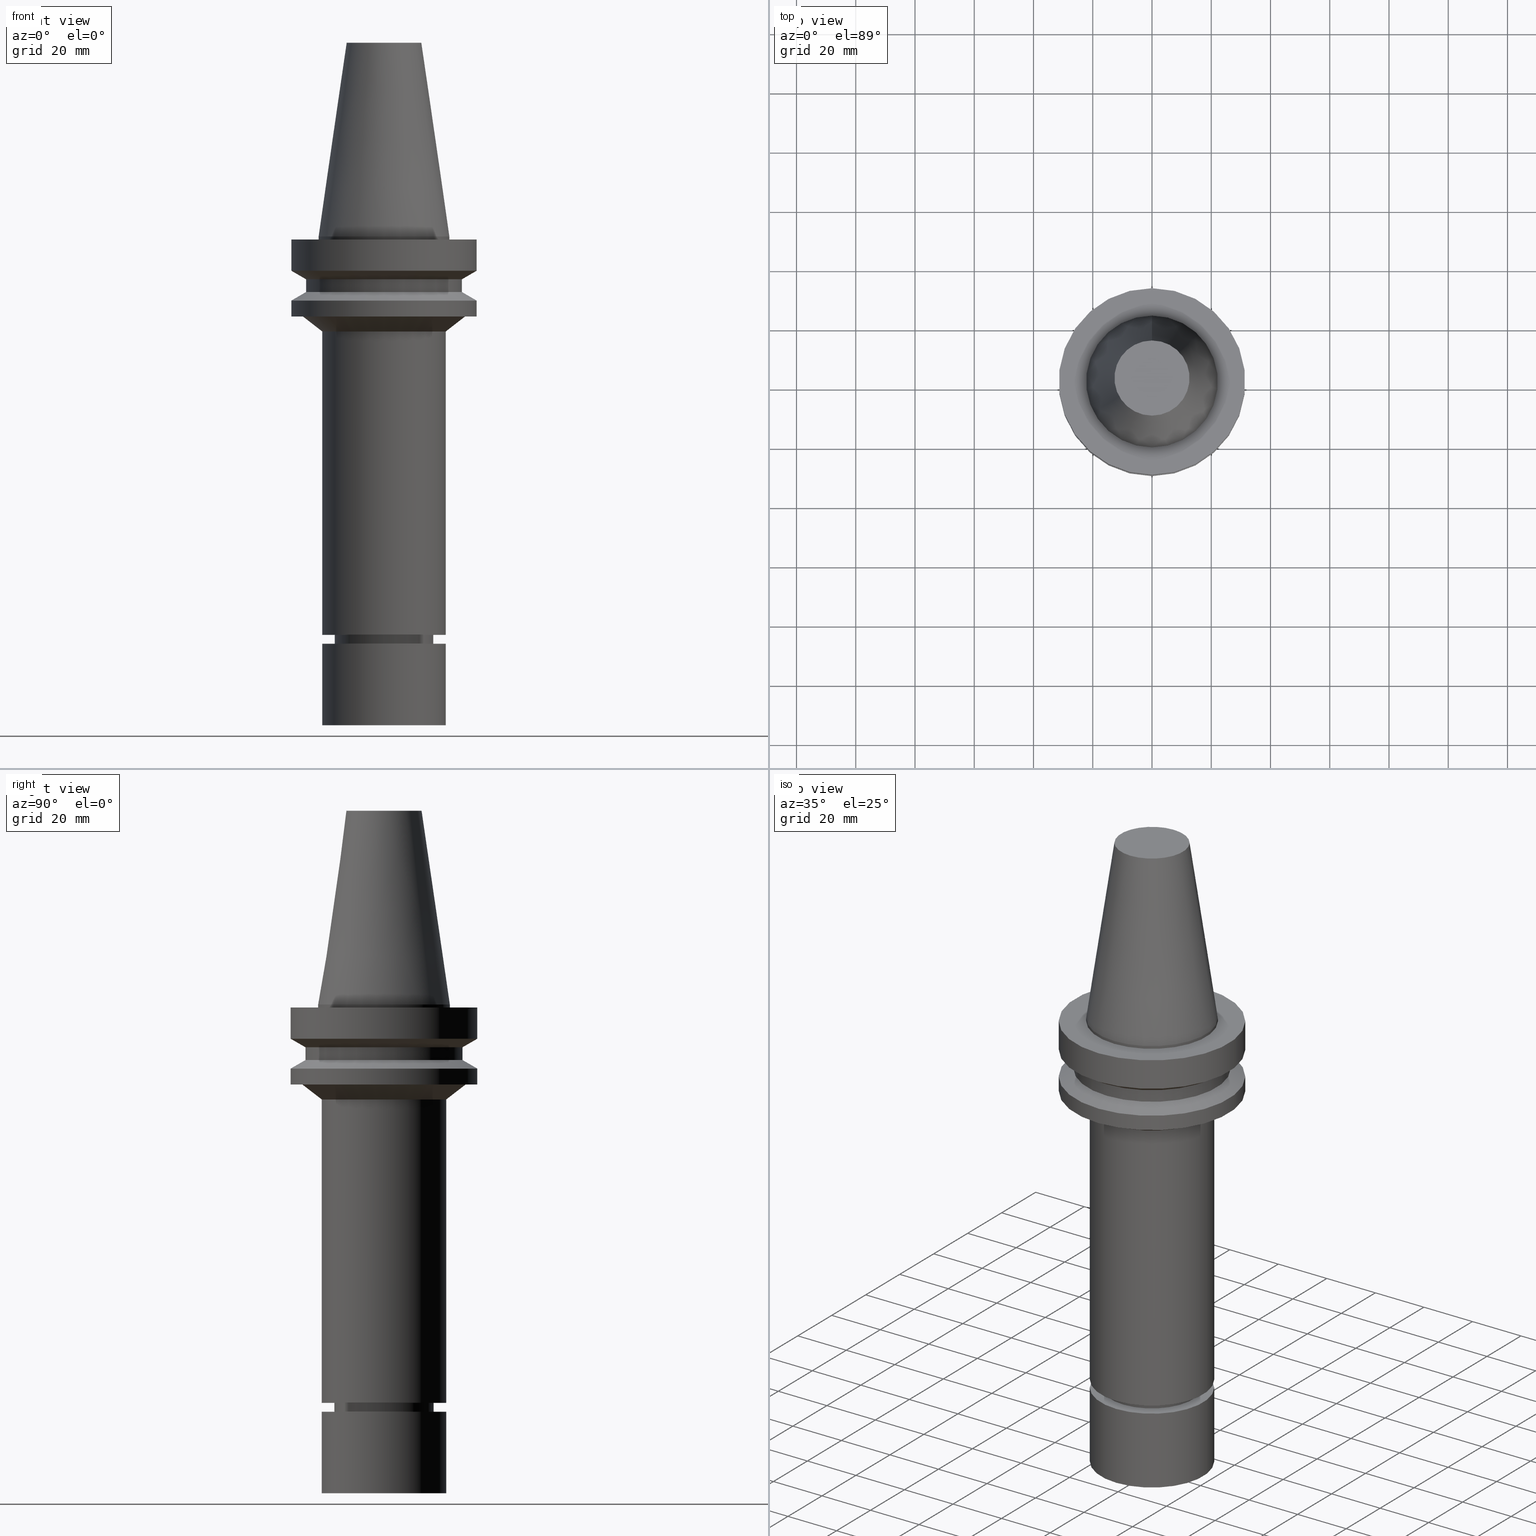
[diagram: canonical four-view strip — front | top / right | iso, engineering-drawing reading convention]
A machine part, canonical four-view strip (front | top / right | iso — engineering-drawing reading convention). The complete STEP part file that produces these views, byte-faithful:
ISO-10303-21;
HEADER;
FILE_DESCRIPTION((''),'1');
FILE_NAME('V:/90_\X2\53D65F9730C730FC30BF\X0\/00_\X2\6DE18DEF30C730FC30BF\X0\/ALL/BBT-BKUS\X2\FF76FF80FF9BFF78FF9E752852A05DE556F3\X0\201801/BBT40-MEGAER/BBT40-MEGAER25-165NL.stp','2018-02-07T02:24:15',(''),(''),'Spatial Interop R21 SP3','Kubotek KeyCreator 2011 V10.0.2 (22737)',' ');
FILE_SCHEMA(('automotive_design'));
ENDSEC;
DATA;
#1=MECHANICAL_DESIGN_GEOMETRIC_PRESENTATION_REPRESENTATION(' ',(#14,#15,#16,#17,#18,#19,#20,#21,#22,#23,#24,#25,#26,#27,#28,#29,#30,#31,#32,#33,#34,#35,#36,#37,#38,#39,#40,#41,#42,#43,#44,#45,#46,#47,#48,#49,#50,#51,#52,#53,#54,#55),#10);
#2=PRODUCT_DEFINITION_CONTEXT('',#56,'design');
#3=APPLICATION_PROTOCOL_DEFINITION('INTERNATIONAL STANDARD','automotive_design',1994,#56);
#4=PRODUCT_CATEGORY_RELATIONSHIP('NONE','NONE',#57,#58);
#5=SHAPE_DEFINITION_REPRESENTATION(#59,#60);
#6=PRODUCT_DEFINITION_CONTEXT('',#61,'design');
#7=APPLICATION_PROTOCOL_DEFINITION('INTERNATIONAL STANDARD','automotive_design',1994,#61);
#8=PRODUCT_CATEGORY_RELATIONSHIP('NONE','NONE',#62,#63);
#9=SHAPE_DEFINITION_REPRESENTATION(#64,#65);
#10= (GEOMETRIC_REPRESENTATION_CONTEXT(3)GLOBAL_UNCERTAINTY_ASSIGNED_CONTEXT((#68))GLOBAL_UNIT_ASSIGNED_CONTEXT((#70,#71,#72))REPRESENTATION_CONTEXT('NONE','WORKSPACE'));
#14=STYLED_ITEM('',(#74,#75),#76);
#15=STYLED_ITEM('',(#77,#78),#79);
#16=STYLED_ITEM('',(#80),#81);
#17=STYLED_ITEM('',(#82),#83);
#18=STYLED_ITEM('',(#84,#85),#86);
#19=STYLED_ITEM('',(#87),#88);
#20=STYLED_ITEM('',(#89,#90),#91);
#21=STYLED_ITEM('',(#92),#93);
#22=STYLED_ITEM('',(#94),#95);
#23=STYLED_ITEM('',(#96,#97),#98);
#24=STYLED_ITEM('',(#99),#100);
#25=STYLED_ITEM('',(#101),#102);
#26=STYLED_ITEM('',(#103,#104),#105);
#27=STYLED_ITEM('',(#106),#107);
#28=STYLED_ITEM('',(#108),#109);
#29=STYLED_ITEM('',(#110),#111);
#30=STYLED_ITEM('',(#112,#113),#114);
#31=STYLED_ITEM('',(#115),#116);
#32=STYLED_ITEM('',(#117,#118),#119);
#33=STYLED_ITEM('',(#120),#121);
#34=STYLED_ITEM('',(#122,#123),#124);
#35=STYLED_ITEM('',(#125,#126),#127);
#36=STYLED_ITEM('',(#128),#129);
#37=STYLED_ITEM('',(#130,#131),#132);
#38=STYLED_ITEM('',(#133),#134);
#39=STYLED_ITEM('',(#135,#136),#137);
#40=STYLED_ITEM('',(#138),#139);
#41=STYLED_ITEM('',(#140),#141);
#42=STYLED_ITEM('',(#142,#143),#144);
#43=STYLED_ITEM('',(#145,#146),#147);
#44=STYLED_ITEM('',(#148,#149),#150);
#45=STYLED_ITEM('',(#151,#152),#153);
#46=STYLED_ITEM('',(#154),#155);
#47=STYLED_ITEM('',(#156,#157),#158);
#48=STYLED_ITEM('',(#159,#160),#161);
#49=STYLED_ITEM('',(#162),#163);
#50=STYLED_ITEM('',(#164,#165),#166);
#51=STYLED_ITEM('',(#167,#168),#169);
#52=STYLED_ITEM('',(#170,#171),#172);
#53=STYLED_ITEM('',(#173),#174);
#54=STYLED_ITEM('',(#175,#176),#177);
#55=STYLED_ITEM('',(#178,#179),#180);
#56=APPLICATION_CONTEXT(' ');
#57=PRODUCT_CATEGORY('part','NONE');
#58=PRODUCT_RELATED_PRODUCT_CATEGORY('detail',' ',(#181));
#59=PRODUCT_DEFINITION_SHAPE('NONE','NONE',#182);
#60=ADVANCED_BREP_SHAPE_REPRESENTATION('Unnamed[1]',(#180,#183),#10);
#61=APPLICATION_CONTEXT(' ');
#62=PRODUCT_CATEGORY('part','NONE');
#63=PRODUCT_RELATED_PRODUCT_CATEGORY('detail',' ',(#184));
#64=PRODUCT_DEFINITION_SHAPE('NONE','NONE',#185);
#65=ADVANCED_BREP_SHAPE_REPRESENTATION('Unnamed[1]',(#98,#186),#10);
#68=UNCERTAINTY_MEASURE_WITH_UNIT(LENGTH_MEASURE(1.0E-006),#70,'','');
#70= (CONVERSION_BASED_UNIT('MILLIMETRE',#189)LENGTH_UNIT()NAMED_UNIT(#192));
#71= (NAMED_UNIT(#194)PLANE_ANGLE_UNIT()SI_UNIT($,.RADIAN.));
#72= (NAMED_UNIT(#194)SOLID_ANGLE_UNIT()SI_UNIT($,.STERADIAN.));
#74=PRESENTATION_STYLE_ASSIGNMENT((#200));
#75=PRESENTATION_STYLE_ASSIGNMENT((#201));
#76=ADVANCED_FACE('Unnamed[1]',(#202,#203),#204,.T.);
#77=PRESENTATION_STYLE_ASSIGNMENT((#205));
#78=PRESENTATION_STYLE_ASSIGNMENT((#206));
#79=ADVANCED_FACE('Unnamed[1]',(#207,#208),#209,.T.);
#80=PRESENTATION_STYLE_ASSIGNMENT((#210));
#81=EDGE_CURVE('Unnamed[1]',#211,#211,#212,.T.);
#82=PRESENTATION_STYLE_ASSIGNMENT((#213));
#83=EDGE_CURVE('Unnamed[1]',#214,#214,#215,.T.);
#84=PRESENTATION_STYLE_ASSIGNMENT((#216));
#85=PRESENTATION_STYLE_ASSIGNMENT((#217));
#86=ADVANCED_FACE('Unnamed[1]',(#218,#219),#220,.T.);
#87=PRESENTATION_STYLE_ASSIGNMENT((#221));
#88=EDGE_CURVE('Unnamed[1]',#222,#222,#223,.T.);
#89=PRESENTATION_STYLE_ASSIGNMENT((#224));
#90=PRESENTATION_STYLE_ASSIGNMENT((#225));
#91=ADVANCED_FACE('Unnamed[1]',(#226,#227),#228,.T.);
#92=PRESENTATION_STYLE_ASSIGNMENT((#229));
#93=EDGE_CURVE('Unnamed[1]',#230,#230,#231,.T.);
#94=PRESENTATION_STYLE_ASSIGNMENT((#232));
#95=EDGE_CURVE('Unnamed[1]',#233,#233,#234,.T.);
#96=PRESENTATION_STYLE_ASSIGNMENT((#235));
#97=PRESENTATION_STYLE_ASSIGNMENT((#236));
#98=MANIFOLD_SOLID_BREP('Unnamed[1]',#237);
#99=PRESENTATION_STYLE_ASSIGNMENT((#238));
#100=EDGE_CURVE('Unnamed[1]',#239,#239,#240,.T.);
#101=PRESENTATION_STYLE_ASSIGNMENT((#241));
#102=EDGE_CURVE('Unnamed[1]',#242,#242,#243,.T.);
#103=PRESENTATION_STYLE_ASSIGNMENT((#244));
#104=PRESENTATION_STYLE_ASSIGNMENT((#245));
#105=ADVANCED_FACE('Unnamed[1]',(#246,#247),#248,.T.);
#106=PRESENTATION_STYLE_ASSIGNMENT((#249));
#107=EDGE_CURVE('Unnamed[1]',#250,#250,#251,.T.);
#108=PRESENTATION_STYLE_ASSIGNMENT((#252));
#109=EDGE_CURVE('Unnamed[1]',#253,#253,#254,.T.);
#110=PRESENTATION_STYLE_ASSIGNMENT((#255));
#111=EDGE_CURVE('Unnamed[1]',#256,#256,#257,.T.);
#112=PRESENTATION_STYLE_ASSIGNMENT((#258));
#113=PRESENTATION_STYLE_ASSIGNMENT((#259));
#114=ADVANCED_FACE('Unnamed[1]',(#260,#261),#262,.T.);
#115=PRESENTATION_STYLE_ASSIGNMENT((#263));
#116=EDGE_CURVE('Unnamed[1]',#264,#264,#265,.T.);
#117=PRESENTATION_STYLE_ASSIGNMENT((#266));
#118=PRESENTATION_STYLE_ASSIGNMENT((#267));
#119=ADVANCED_FACE('Unnamed[1]',(#268),#269,.T.);
#120=PRESENTATION_STYLE_ASSIGNMENT((#270));
#121=EDGE_CURVE('Unnamed[1]',#271,#271,#272,.T.);
#122=PRESENTATION_STYLE_ASSIGNMENT((#273));
#123=PRESENTATION_STYLE_ASSIGNMENT((#274));
#124=ADVANCED_FACE('Unnamed[1]',(#275,#276),#277,.T.);
#125=PRESENTATION_STYLE_ASSIGNMENT((#278));
#126=PRESENTATION_STYLE_ASSIGNMENT((#279));
#127=ADVANCED_FACE('Unnamed[1]',(#280,#281),#282,.T.);
#128=PRESENTATION_STYLE_ASSIGNMENT((#283));
#129=EDGE_CURVE('Unnamed[1]',#284,#284,#285,.T.);
#130=PRESENTATION_STYLE_ASSIGNMENT((#286));
#131=PRESENTATION_STYLE_ASSIGNMENT((#287));
#132=ADVANCED_FACE('Unnamed[1]',(#288),#289,.T.);
#133=PRESENTATION_STYLE_ASSIGNMENT((#290));
#134=EDGE_CURVE('Unnamed[1]',#291,#291,#292,.T.);
#135=PRESENTATION_STYLE_ASSIGNMENT((#293));
#136=PRESENTATION_STYLE_ASSIGNMENT((#294));
#137=ADVANCED_FACE('Unnamed[1]',(#295,#296),#297,.T.);
#138=PRESENTATION_STYLE_ASSIGNMENT((#298));
#139=EDGE_CURVE('Unnamed[1]',#299,#299,#300,.T.);
#140=PRESENTATION_STYLE_ASSIGNMENT((#301));
#141=EDGE_CURVE('Unnamed[1]',#302,#302,#303,.T.);
#142=PRESENTATION_STYLE_ASSIGNMENT((#304));
#143=PRESENTATION_STYLE_ASSIGNMENT((#305));
#144=ADVANCED_FACE('Unnamed[1]',(#306,#307),#308,.T.);
#145=PRESENTATION_STYLE_ASSIGNMENT((#309));
#146=PRESENTATION_STYLE_ASSIGNMENT((#310));
#147=ADVANCED_FACE('Unnamed[1]',(#311,#312),#313,.T.);
#148=PRESENTATION_STYLE_ASSIGNMENT((#314));
#149=PRESENTATION_STYLE_ASSIGNMENT((#315));
#150=ADVANCED_FACE('Unnamed[1]',(#316,#317),#318,.T.);
#151=PRESENTATION_STYLE_ASSIGNMENT((#319));
#152=PRESENTATION_STYLE_ASSIGNMENT((#320));
#153=ADVANCED_FACE('Unnamed[1]',(#321),#322,.T.);
#154=PRESENTATION_STYLE_ASSIGNMENT((#323));
#155=EDGE_CURVE('Unnamed[1]',#324,#324,#325,.T.);
#156=PRESENTATION_STYLE_ASSIGNMENT((#326));
#157=PRESENTATION_STYLE_ASSIGNMENT((#327));
#158=ADVANCED_FACE('Unnamed[1]',(#328,#329),#330,.T.);
#159=PRESENTATION_STYLE_ASSIGNMENT((#331));
#160=PRESENTATION_STYLE_ASSIGNMENT((#332));
#161=ADVANCED_FACE('Unnamed[1]',(#333),#334,.T.);
#162=PRESENTATION_STYLE_ASSIGNMENT((#335));
#163=EDGE_CURVE('Unnamed[1]',#336,#336,#337,.T.);
#164=PRESENTATION_STYLE_ASSIGNMENT((#338));
#165=PRESENTATION_STYLE_ASSIGNMENT((#339));
#166=ADVANCED_FACE('Unnamed[1]',(#340,#341),#342,.T.);
#167=PRESENTATION_STYLE_ASSIGNMENT((#343));
#168=PRESENTATION_STYLE_ASSIGNMENT((#344));
#169=ADVANCED_FACE('Unnamed[1]',(#345,#346),#347,.T.);
#170=PRESENTATION_STYLE_ASSIGNMENT((#348));
#171=PRESENTATION_STYLE_ASSIGNMENT((#349));
#172=ADVANCED_FACE('Unnamed[1]',(#350,#351),#352,.T.);
#173=PRESENTATION_STYLE_ASSIGNMENT((#353));
#174=EDGE_CURVE('Unnamed[1]',#354,#354,#355,.T.);
#175=PRESENTATION_STYLE_ASSIGNMENT((#356));
#176=PRESENTATION_STYLE_ASSIGNMENT((#357));
#177=ADVANCED_FACE('Unnamed[1]',(#358,#359),#360,.T.);
#178=PRESENTATION_STYLE_ASSIGNMENT((#361));
#179=PRESENTATION_STYLE_ASSIGNMENT((#362));
#180=MANIFOLD_SOLID_BREP('Unnamed[1]',#363);
#181=PRODUCT('Unnamed[1]','Unnamed[1]','PART-Unnamed[1]-DESC',(#364));
#182=PRODUCT_DEFINITION('NONE','NONE',#365,#2);
#183=AXIS2_PLACEMENT_3D('',#366,#367,#368);
#184=PRODUCT('Unnamed[1]','Unnamed[1]','PART-Unnamed[1]-DESC',(#369));
#185=PRODUCT_DEFINITION('NONE','NONE',#370,#6);
#186=AXIS2_PLACEMENT_3D('',#371,#372,#373);
#189=LENGTH_MEASURE_WITH_UNIT(LENGTH_MEASURE(1.0),#374);
#192=DIMENSIONAL_EXPONENTS(1.0,0.0,0.0,0.0,0.0,0.0,0.0);
#194=DIMENSIONAL_EXPONENTS(0.0,0.0,0.0,0.0,0.0,0.0,0.0);
#200=SURFACE_STYLE_USAGE(.BOTH.,#375);
#201=CURVE_STYLE('',#376,POSITIVE_LENGTH_MEASURE(1000.0),#377);
#202=FACE_BOUND('',#378,.T.);
#203=FACE_OUTER_BOUND('',#379,.T.);
#204=PLANE('',#380);
#205=SURFACE_STYLE_USAGE(.BOTH.,#381);
#206=CURVE_STYLE('',#382,POSITIVE_LENGTH_MEASURE(1000.0),#383);
#207=FACE_BOUND('',#384,.T.);
#208=FACE_BOUND('',#385,.T.);
#209=CONICAL_SURFACE('',#386,28.9999999999998,1.04719755119657);
#210=CURVE_STYLE('',#387,POSITIVE_LENGTH_MEASURE(1000.0),#388);
#211=VERTEX_POINT('',#389);
#212=CIRCLE('',#390,21.0000000000001);
#213=CURVE_STYLE('',#391,POSITIVE_LENGTH_MEASURE(1000.0),#392);
#214=VERTEX_POINT('',#393);
#215=CIRCLE('',#394,14.9000000000005);
#216=SURFACE_STYLE_USAGE(.BOTH.,#395);
#217=CURVE_STYLE('',#396,POSITIVE_LENGTH_MEASURE(1000.0),#397);
#218=FACE_BOUND('',#398,.T.);
#219=FACE_BOUND('',#399,.T.);
#220=CYLINDRICAL_SURFACE('',#400,22.225);
#221=CURVE_STYLE('',#401,POSITIVE_LENGTH_MEASURE(1000.0),#402);
#222=VERTEX_POINT('',#403);
#223=CIRCLE('',#404,22.225);
#224=SURFACE_STYLE_USAGE(.BOTH.,#405);
#225=CURVE_STYLE('',#406,POSITIVE_LENGTH_MEASURE(1000.0),#407);
#226=FACE_BOUND('',#408,.T.);
#227=FACE_BOUND('',#409,.T.);
#228=CONICAL_SURFACE('',#410,16.3750000000007,1.04719755120057);
#229=CURVE_STYLE('',#411,POSITIVE_LENGTH_MEASURE(1000.0),#412);
#230=VERTEX_POINT('',#413);
#231=CIRCLE('',#414,26.4999999999994);
#232=CURVE_STYLE('',#415,POSITIVE_LENGTH_MEASURE(1000.0),#416);
#233=VERTEX_POINT('',#417);
#234=CIRCLE('',#418,20.9999999999999);
#235=SURFACE_STYLE_USAGE(.BOTH.,#419);
#236=CURVE_STYLE('',#420,POSITIVE_LENGTH_MEASURE(1000.0),#421);
#237=CLOSED_SHELL('',(#161,#119,#158));
#238=CURVE_STYLE('',#422,POSITIVE_LENGTH_MEASURE(1000.0),#423);
#239=VERTEX_POINT('',#424);
#240=CIRCLE('',#425,31.5000000000003);
#241=CURVE_STYLE('',#426,POSITIVE_LENGTH_MEASURE(1000.0),#427);
#242=VERTEX_POINT('',#428);
#243=CIRCLE('',#429,21.0000000000004);
#244=SURFACE_STYLE_USAGE(.BOTH.,#430);
#245=CURVE_STYLE('',#431,POSITIVE_LENGTH_MEASURE(1000.0),#432);
#246=FACE_BOUND('',#433,.T.);
#247=FACE_BOUND('',#434,.T.);
#248=CONICAL_SURFACE('',#435,17.45625,0.144812498238936);
#249=CURVE_STYLE('',#436,POSITIVE_LENGTH_MEASURE(1000.0),#437);
#250=VERTEX_POINT('',#438);
#251=CIRCLE('',#439,20.9999999999999);
#252=CURVE_STYLE('',#440,POSITIVE_LENGTH_MEASURE(1000.0),#441);
#253=VERTEX_POINT('',#442);
#254=CIRCLE('',#443,12.6875000000001);
#255=CURVE_STYLE('',#444,POSITIVE_LENGTH_MEASURE(1000.0),#445);
#256=VERTEX_POINT('',#446);
#257=CIRCLE('',#447,26.5);
#258=SURFACE_STYLE_USAGE(.BOTH.,#448);
#259=CURVE_STYLE('',#449,POSITIVE_LENGTH_MEASURE(1000.0),#450);
#260=FACE_BOUND('',#451,.T.);
#261=FACE_BOUND('',#452,.T.);
#262=CONICAL_SURFACE('',#453,24.285926013083,0.914225393497888);
#263=CURVE_STYLE('',#454,POSITIVE_LENGTH_MEASURE(1000.0),#455);
#264=VERTEX_POINT('',#456);
#265=CIRCLE('',#457,22.225);
#266=SURFACE_STYLE_USAGE(.BOTH.,#458);
#267=CURVE_STYLE('',#459,POSITIVE_LENGTH_MEASURE(1000.0),#460);
#268=FACE_OUTER_BOUND('',#461,.T.);
#269=PLANE('',#462);
#270=CURVE_STYLE('',#463,POSITIVE_LENGTH_MEASURE(1000.0),#464);
#271=VERTEX_POINT('',#465);
#272=CIRCLE('',#466,31.5000000000003);
#273=SURFACE_STYLE_USAGE(.BOTH.,#467);
#274=CURVE_STYLE('',#468,POSITIVE_LENGTH_MEASURE(1000.0),#469);
#275=FACE_BOUND('',#470,.T.);
#276=FACE_BOUND('',#471,.T.);
#277=CYLINDRICAL_SURFACE('',#472,16.7499999999961);
#278=SURFACE_STYLE_USAGE(.BOTH.,#473);
#279=CURVE_STYLE('',#474,POSITIVE_LENGTH_MEASURE(1000.0),#475);
#280=FACE_BOUND('',#476,.T.);
#281=FACE_BOUND('',#477,.T.);
#282=CYLINDRICAL_SURFACE('',#478,15.9999999999999);
#283=CURVE_STYLE('',#479,POSITIVE_LENGTH_MEASURE(1000.0),#480);
#284=VERTEX_POINT('',#481);
#285=CIRCLE('',#482,16.7500000000015);
#286=SURFACE_STYLE_USAGE(.BOTH.,#483);
#287=CURVE_STYLE('',#484,POSITIVE_LENGTH_MEASURE(1000.0),#485);
#288=FACE_OUTER_BOUND('',#486,.T.);
#289=PLANE('',#487);
#290=CURVE_STYLE('',#488,POSITIVE_LENGTH_MEASURE(1000.0),#489);
#291=VERTEX_POINT('',#490);
#292=CIRCLE('',#491,27.5718520261655);
#293=SURFACE_STYLE_USAGE(.BOTH.,#492);
#294=CURVE_STYLE('',#493,POSITIVE_LENGTH_MEASURE(1000.0),#494);
#295=FACE_BOUND('',#495,.T.);
#296=FACE_BOUND('',#496,.T.);
#297=CONICAL_SURFACE('',#497,15.4500000000002,0.523598775598073);
#298=CURVE_STYLE('',#498,POSITIVE_LENGTH_MEASURE(1000.0),#499);
#299=VERTEX_POINT('',#500);
#300=CIRCLE('',#501,15.9999999999999);
#301=CURVE_STYLE('',#502,POSITIVE_LENGTH_MEASURE(1000.0),#503);
#302=VERTEX_POINT('',#504);
#303=CIRCLE('',#505,15.9999999999999);
#304=SURFACE_STYLE_USAGE(.BOTH.,#506);
#305=CURVE_STYLE('',#507,POSITIVE_LENGTH_MEASURE(1000.0),#508);
#306=FACE_BOUND('',#509,.T.);
#307=FACE_BOUND('',#510,.T.);
#308=CYLINDRICAL_SURFACE('',#511,31.5000000000005);
#309=SURFACE_STYLE_USAGE(.BOTH.,#512);
#310=CURVE_STYLE('',#513,POSITIVE_LENGTH_MEASURE(1000.0),#514);
#311=FACE_OUTER_BOUND('',#515,.T.);
#312=FACE_BOUND('',#516,.T.);
#313=PLANE('',#517);
#314=SURFACE_STYLE_USAGE(.BOTH.,#518);
#315=CURVE_STYLE('',#519,POSITIVE_LENGTH_MEASURE(1000.0),#520);
#316=FACE_BOUND('',#521,.T.);
#317=FACE_BOUND('',#522,.T.);
#318=CYLINDRICAL_SURFACE('',#523,26.4999999999997);
#319=SURFACE_STYLE_USAGE(.BOTH.,#524);
#320=CURVE_STYLE('',#525,POSITIVE_LENGTH_MEASURE(1000.0),#526);
#321=FACE_OUTER_BOUND('',#527,.T.);
#322=PLANE('',#528);
#323=CURVE_STYLE('',#529,POSITIVE_LENGTH_MEASURE(1000.0),#530);
#324=VERTEX_POINT('',#531);
#325=CIRCLE('',#532,31.5000000000006);
#326=SURFACE_STYLE_USAGE(.BOTH.,#533);
#327=CURVE_STYLE('',#534,POSITIVE_LENGTH_MEASURE(1000.0),#535);
#328=FACE_BOUND('',#536,.T.);
#329=FACE_BOUND('',#537,.T.);
#330=CYLINDRICAL_SURFACE('',#538,20.9999999999999);
#331=SURFACE_STYLE_USAGE(.BOTH.,#539);
#332=CURVE_STYLE('',#540,POSITIVE_LENGTH_MEASURE(1000.0),#541);
#333=FACE_OUTER_BOUND('',#542,.T.);
#334=PLANE('',#543);
#335=CURVE_STYLE('',#544,POSITIVE_LENGTH_MEASURE(1000.0),#545);
#336=VERTEX_POINT('',#546);
#337=CIRCLE('',#547,31.4999999999996);
#338=SURFACE_STYLE_USAGE(.BOTH.,#548);
#339=CURVE_STYLE('',#549,POSITIVE_LENGTH_MEASURE(1000.0),#550);
#340=FACE_BOUND('',#551,.T.);
#341=FACE_BOUND('',#552,.T.);
#342=CYLINDRICAL_SURFACE('',#553,31.5);
#343=SURFACE_STYLE_USAGE(.BOTH.,#554);
#344=CURVE_STYLE('',#555,POSITIVE_LENGTH_MEASURE(1000.0),#556);
#345=FACE_BOUND('',#557,.T.);
#346=FACE_BOUND('',#558,.T.);
#347=CONICAL_SURFACE('',#559,29.0000000000003,1.04719755119651);
#348=SURFACE_STYLE_USAGE(.BOTH.,#560);
#349=CURVE_STYLE('',#561,POSITIVE_LENGTH_MEASURE(1000.0),#562);
#350=FACE_BOUND('',#563,.T.);
#351=FACE_BOUND('',#564,.T.);
#352=CYLINDRICAL_SURFACE('',#565,21.0000000000003);
#353=CURVE_STYLE('',#566,POSITIVE_LENGTH_MEASURE(1000.0),#567);
#354=VERTEX_POINT('',#568);
#355=CIRCLE('',#569,16.7499999999906);
#356=SURFACE_STYLE_USAGE(.BOTH.,#570);
#357=CURVE_STYLE('',#571,POSITIVE_LENGTH_MEASURE(1000.0),#572);
#358=FACE_BOUND('',#573,.T.);
#359=FACE_OUTER_BOUND('',#574,.T.);
#360=PLANE('',#575);
#361=SURFACE_STYLE_USAGE(.BOTH.,#576);
#362=CURVE_STYLE('',#577,POSITIVE_LENGTH_MEASURE(1000.0),#578);
#363=CLOSED_SHELL('',(#132,#105,#86,#147,#166,#79,#150,#169,#144,#76,#114,#172,#177,#124,#91,#127,#137,#153));
#364=PRODUCT_CONTEXT('',#56,'mechanical');
#365=PRODUCT_DEFINITION_FORMATION_WITH_SPECIFIED_SOURCE(' ','NONE',#181,.NOT_KNOWN.);
#366=CARTESIAN_POINT('',(0.0,0.0,0.0));
#367=DIRECTION('',(0.0,0.0,1.0));
#368=DIRECTION('',(1.0,0.0,0.0));
#369=PRODUCT_CONTEXT('',#61,'mechanical');
#370=PRODUCT_DEFINITION_FORMATION_WITH_SPECIFIED_SOURCE(' ','NONE',#184,.NOT_KNOWN.);
#371=CARTESIAN_POINT('',(0.0,0.0,0.0));
#372=DIRECTION('',(0.0,0.0,1.0));
#373=DIRECTION('',(1.0,0.0,0.0));
#374= (NAMED_UNIT(#192)LENGTH_UNIT()SI_UNIT(.MILLI.,.METRE.));
#375=SURFACE_SIDE_STYLE('',(#580));
#376=DRAUGHTING_PRE_DEFINED_CURVE_FONT('continuous');
#377=COLOUR_RGB('',0.0,1.0,0.0);
#378=EDGE_LOOP('',(#581));
#379=EDGE_LOOP('',(#582));
#380=AXIS2_PLACEMENT_3D('',#583,#584,#585);
#381=SURFACE_SIDE_STYLE('',(#586));
#382=DRAUGHTING_PRE_DEFINED_CURVE_FONT('continuous');
#383=COLOUR_RGB('',0.0,1.0,0.0);
#384=EDGE_LOOP('',(#587));
#385=EDGE_LOOP('',(#588));
#386=AXIS2_PLACEMENT_3D('',#589,#590,#591);
#387=DRAUGHTING_PRE_DEFINED_CURVE_FONT('continuous');
#388=COLOUR_RGB('',0.0,1.0,0.0);
#389=CARTESIAN_POINT('',(8.23574972426594E-015,21.0000000000002,-134.5));
#390=AXIS2_PLACEMENT_3D('',#592,#593,#594);
#391=DRAUGHTING_PRE_DEFINED_CURVE_FONT('continuous');
#392=COLOUR_RGB('',0.0,1.0,0.0);
#393=CARTESIAN_POINT('',(9.47876622540052E-015,14.9000000000006,-154.8));
#394=AXIS2_PLACEMENT_3D('',#595,#596,#597);
#395=SURFACE_SIDE_STYLE('',(#598));
#396=DRAUGHTING_PRE_DEFINED_CURVE_FONT('continuous');
#397=COLOUR_RGB('',0.0,1.0,0.0);
#398=EDGE_LOOP('',(#599));
#399=EDGE_LOOP('',(#600));
#400=AXIS2_PLACEMENT_3D('',#601,#602,#603);
#401=DRAUGHTING_PRE_DEFINED_CURVE_FONT('continuous');
#402=COLOUR_RGB('',0.0,1.0,0.0);
#403=CARTESIAN_POINT('',(1.71319921032766E-029,22.2250000000001,-2.8153873565375E-013));
#404=AXIS2_PLACEMENT_3D('',#604,#605,#606);
#405=SURFACE_SIDE_STYLE('',(#607));
#406=DRAUGHTING_PRE_DEFINED_CURVE_FONT('continuous');
#407=COLOUR_RGB('',0.0,1.0,0.0);
#408=EDGE_LOOP('',(#608));
#409=EDGE_LOOP('',(#609));
#410=AXIS2_PLACEMENT_3D('',#610,#611,#612);
#411=DRAUGHTING_PRE_DEFINED_CURVE_FONT('continuous');
#412=COLOUR_RGB('',0.0,1.0,0.0);
#413=CARTESIAN_POINT('',(8.8494551369045E-016,26.4999999999995,-14.4522569986152));
#414=AXIS2_PLACEMENT_3D('',#613,#614,#615);
#415=DRAUGHTING_PRE_DEFINED_CURVE_FONT('continuous');
#416=COLOUR_RGB('',0.0,1.0,0.0);
#417=CARTESIAN_POINT('',(8.41944674413805E-015,21.0,-137.5));
#418=AXIS2_PLACEMENT_3D('',#616,#617,#618);
#419=SURFACE_SIDE_STYLE('',(#619));
#420=DRAUGHTING_PRE_DEFINED_CURVE_FONT('continuous');
#421=COLOUR_RGB('',0.0,1.0,0.0);
#422=DRAUGHTING_PRE_DEFINED_CURVE_FONT('continuous');
#423=COLOUR_RGB('',0.0,1.0,0.0);
#424=CARTESIAN_POINT('',(1.65327317884891E-015,31.5000000000004,-26.9999999999998));
#425=AXIS2_PLACEMENT_3D('',#620,#621,#622);
#426=DRAUGHTING_PRE_DEFINED_CURVE_FONT('continuous');
#427=COLOUR_RGB('',0.0,1.0,0.0);
#428=CARTESIAN_POINT('',(1.96338026992049E-015,21.0000000000005,-32.0644331294128));
#429=AXIS2_PLACEMENT_3D('',#623,#624,#625);
#430=SURFACE_SIDE_STYLE('',(#626));
#431=DRAUGHTING_PRE_DEFINED_CURVE_FONT('continuous');
#432=COLOUR_RGB('',0.0,1.0,0.0);
#433=EDGE_LOOP('',(#627));
#434=EDGE_LOOP('',(#628));
#435=AXIS2_PLACEMENT_3D('',#629,#630,#631);
#436=DRAUGHTING_PRE_DEFINED_CURVE_FONT('continuous');
#437=COLOUR_RGB('',0.0,1.0,0.0);
#438=CARTESIAN_POINT('',(1.01033360929657E-014,21.0,-165.0));
#439=AXIS2_PLACEMENT_3D('',#632,#633,#634);
#440=DRAUGHTING_PRE_DEFINED_CURVE_FONT('continuous');
#441=COLOUR_RGB('',0.0,1.0,0.0);
#442=CARTESIAN_POINT('',(-4.00459503321185E-015,12.6875000000002,65.4000000000001));
#443=AXIS2_PLACEMENT_3D('',#635,#636,#637);
#444=DRAUGHTING_PRE_DEFINED_CURVE_FONT('continuous');
#445=COLOUR_RGB('',0.0,1.0,0.0);
#446=CARTESIAN_POINT('',(1.1479681728942E-015,26.5,-18.7477430013855));
#447=AXIS2_PLACEMENT_3D('',#638,#639,#640);
#448=SURFACE_SIDE_STYLE('',(#641));
#449=DRAUGHTING_PRE_DEFINED_CURVE_FONT('continuous');
#450=COLOUR_RGB('',0.0,1.0,0.0);
#451=EDGE_LOOP('',(#642));
#452=EDGE_LOOP('',(#643));
#453=AXIS2_PLACEMENT_3D('',#644,#645,#646);
#454=DRAUGHTING_PRE_DEFINED_CURVE_FONT('continuous');
#455=COLOUR_RGB('',0.0,1.0,0.0);
#456=CARTESIAN_POINT('',(6.12323399573622E-017,22.2250000000001,-0.999999999999912));
#457=AXIS2_PLACEMENT_3D('',#647,#648,#649);
#458=SURFACE_SIDE_STYLE('',(#650));
#459=DRAUGHTING_PRE_DEFINED_CURVE_FONT('continuous');
#460=COLOUR_RGB('',0.0,1.0,0.0);
#461=EDGE_LOOP('',(#651));
#462=AXIS2_PLACEMENT_3D('',#652,#653,#654);
#463=DRAUGHTING_PRE_DEFINED_CURVE_FONT('continuous');
#464=COLOUR_RGB('',0.0,1.0,0.0);
#465=CARTESIAN_POINT('',(7.08182973902924E-016,31.5000000000004,-11.5655056526664));
#466=AXIS2_PLACEMENT_3D('',#655,#656,#657);
#467=SURFACE_SIDE_STYLE('',(#658));
#468=DRAUGHTING_PRE_DEFINED_CURVE_FONT('continuous');
#469=COLOUR_RGB('',0.0,1.0,0.0);
#470=EDGE_LOOP('',(#659));
#471=EDGE_LOOP('',(#660));
#472=AXIS2_PLACEMENT_3D('',#661,#662,#663);
#473=SURFACE_SIDE_STYLE('',(#664));
#474=DRAUGHTING_PRE_DEFINED_CURVE_FONT('continuous');
#475=COLOUR_RGB('',0.0,1.0,0.0);
#476=EDGE_LOOP('',(#665));
#477=EDGE_LOOP('',(#666));
#478=AXIS2_PLACEMENT_3D('',#667,#668,#669);
#479=DRAUGHTING_PRE_DEFINED_CURVE_FONT('continuous');
#480=COLOUR_RGB('',0.0,1.0,0.0);
#481=CARTESIAN_POINT('',(8.60114298906023E-015,16.7500000000016,-140.467324865401));
#482=AXIS2_PLACEMENT_3D('',#670,#671,#672);
#483=SURFACE_SIDE_STYLE('',(#673));
#484=DRAUGHTING_PRE_DEFINED_CURVE_FONT('continuous');
#485=COLOUR_RGB('',0.0,1.0,0.0);
#486=EDGE_LOOP('',(#674));
#487=AXIS2_PLACEMENT_3D('',#675,#676,#677);
#488=DRAUGHTING_PRE_DEFINED_CURVE_FONT('continuous');
#489=COLOUR_RGB('',0.0,1.0,0.0);
#490=CARTESIAN_POINT('',(1.65327317884891E-015,27.5718520261656,-26.9999999999998));
#491=AXIS2_PLACEMENT_3D('',#678,#679,#680);
#492=SURFACE_SIDE_STYLE('',(#681));
#493=DRAUGHTING_PRE_DEFINED_CURVE_FONT('continuous');
#494=COLOUR_RGB('',0.0,1.0,0.0);
#495=EDGE_LOOP('',(#682));
#496=EDGE_LOOP('',(#683));
#497=AXIS2_PLACEMENT_3D('',#684,#685,#686);
#498=DRAUGHTING_PRE_DEFINED_CURVE_FONT('continuous');
#499=COLOUR_RGB('',0.0,1.0,0.0);
#500=CARTESIAN_POINT('',(8.62765737002817E-015,16.0,-140.90033756729));
#501=AXIS2_PLACEMENT_3D('',#687,#688,#689);
#502=DRAUGHTING_PRE_DEFINED_CURVE_FONT('continuous');
#503=COLOUR_RGB('',0.0,1.0,0.0);
#504=CARTESIAN_POINT('',(9.36210294914078E-015,16.0,-152.894744111674));
#505=AXIS2_PLACEMENT_3D('',#690,#691,#692);
#506=SURFACE_SIDE_STYLE('',(#693));
#507=DRAUGHTING_PRE_DEFINED_CURVE_FONT('continuous');
#508=COLOUR_RGB('',0.0,1.0,0.0);
#509=EDGE_LOOP('',(#694));
#510=EDGE_LOOP('',(#695));
#511=AXIS2_PLACEMENT_3D('',#696,#697,#698);
#512=SURFACE_SIDE_STYLE('',(#699));
#513=DRAUGHTING_PRE_DEFINED_CURVE_FONT('continuous');
#514=COLOUR_RGB('',0.0,1.0,0.0);
#515=EDGE_LOOP('',(#700));
#516=EDGE_LOOP('',(#701));
#517=AXIS2_PLACEMENT_3D('',#702,#703,#704);
#518=SURFACE_SIDE_STYLE('',(#705));
#519=DRAUGHTING_PRE_DEFINED_CURVE_FONT('continuous');
#520=COLOUR_RGB('',0.0,1.0,0.0);
#521=EDGE_LOOP('',(#706));
#522=EDGE_LOOP('',(#707));
#523=AXIS2_PLACEMENT_3D('',#708,#709,#710);
#524=SURFACE_SIDE_STYLE('',(#711));
#525=DRAUGHTING_PRE_DEFINED_CURVE_FONT('continuous');
#526=COLOUR_RGB('',0.0,1.0,0.0);
#527=EDGE_LOOP('',(#712));
#528=AXIS2_PLACEMENT_3D('',#713,#714,#715);
#529=DRAUGHTING_PRE_DEFINED_CURVE_FONT('continuous');
#530=COLOUR_RGB('',0.0,1.0,0.0);
#531=CARTESIAN_POINT('',(1.32473071268174E-015,31.5000000000007,-21.6344943473346));
#532=AXIS2_PLACEMENT_3D('',#716,#717,#718);
#533=SURFACE_SIDE_STYLE('',(#719));
#534=DRAUGHTING_PRE_DEFINED_CURVE_FONT('continuous');
#535=COLOUR_RGB('',0.0,1.0,0.0);
#536=EDGE_LOOP('',(#720));
#537=EDGE_LOOP('',(#721));
#538=AXIS2_PLACEMENT_3D('',#722,#723,#724);
#539=SURFACE_SIDE_STYLE('',(#725));
#540=DRAUGHTING_PRE_DEFINED_CURVE_FONT('continuous');
#541=COLOUR_RGB('',0.0,1.0,0.0);
#542=EDGE_LOOP('',(#726));
#543=AXIS2_PLACEMENT_3D('',#727,#728,#729);
#544=DRAUGHTING_PRE_DEFINED_CURVE_FONT('continuous');
#545=COLOUR_RGB('',0.0,1.0,0.0);
#546=CARTESIAN_POINT('',(6.12323399573568E-017,31.4999999999997,-0.999999999999825));
#547=AXIS2_PLACEMENT_3D('',#730,#731,#732);
#548=SURFACE_SIDE_STYLE('',(#733));
#549=DRAUGHTING_PRE_DEFINED_CURVE_FONT('continuous');
#550=COLOUR_RGB('',0.0,1.0,0.0);
#551=EDGE_LOOP('',(#734));
#552=EDGE_LOOP('',(#735));
#553=AXIS2_PLACEMENT_3D('',#736,#737,#738);
#554=SURFACE_SIDE_STYLE('',(#739));
#555=DRAUGHTING_PRE_DEFINED_CURVE_FONT('continuous');
#556=COLOUR_RGB('',0.0,1.0,0.0);
#557=EDGE_LOOP('',(#740));
#558=EDGE_LOOP('',(#741));
#559=AXIS2_PLACEMENT_3D('',#742,#743,#744);
#560=SURFACE_SIDE_STYLE('',(#745));
#561=DRAUGHTING_PRE_DEFINED_CURVE_FONT('continuous');
#562=COLOUR_RGB('',0.0,1.0,0.0);
#563=EDGE_LOOP('',(#746));
#564=EDGE_LOOP('',(#747));
#565=AXIS2_PLACEMENT_3D('',#748,#749,#750);
#566=DRAUGHTING_PRE_DEFINED_CURVE_FONT('continuous');
#567=COLOUR_RGB('',0.0,1.0,0.0);
#568=CARTESIAN_POINT('',(8.2357497242659E-015,16.7499999999907,-134.499999999999));
#569=AXIS2_PLACEMENT_3D('',#751,#752,#753);
#570=SURFACE_SIDE_STYLE('',(#754));
#571=DRAUGHTING_PRE_DEFINED_CURVE_FONT('continuous');
#572=COLOUR_RGB('',0.0,1.0,0.0);
#573=EDGE_LOOP('',(#755));
#574=EDGE_LOOP('',(#756));
#575=AXIS2_PLACEMENT_3D('',#757,#758,#759);
#576=SURFACE_SIDE_STYLE('',(#760));
#577=DRAUGHTING_PRE_DEFINED_CURVE_FONT('continuous');
#578=COLOUR_RGB('',0.0,1.0,0.0);
#580=SURFACE_STYLE_FILL_AREA(#761);
#581=ORIENTED_EDGE('',*,*,#134,.F.);
#582=ORIENTED_EDGE('',*,*,#100,.T.);
#583=CARTESIAN_POINT('',(1.65327317884891E-015,29.535926013083,-26.9999999999998));
#584=DIRECTION('',(6.12323399573677E-017,2.83573849429108E-015,-1.0));
#585=DIRECTION('',(-1.78466056243394E-031,1.0,2.83573849429108E-015));
#586=SURFACE_STYLE_FILL_AREA(#762);
#587=ORIENTED_EDGE('',*,*,#93,.F.);
#588=ORIENTED_EDGE('',*,*,#121,.T.);
#589=CARTESIAN_POINT('',(7.96564243796687E-016,7.77858879298678E-014,-13.0088813256408));
#590=DIRECTION('',(-6.12323399573677E-017,-7.77674569766741E-018,1.0));
#591=DIRECTION('',(-5.30334106708964E-033,1.0,7.77674569766741E-018));
#592=CARTESIAN_POINT('',(8.23574972426594E-015,7.87306934643243E-014,-134.5));
#593=DIRECTION('',(6.12323399573677E-017,7.77674569781588E-018,-1.0));
#594=DIRECTION('',(-5.30334106709076E-033,1.0,7.77674569781588E-018));
#595=CARTESIAN_POINT('',(9.47876622540052E-015,7.88885614019871E-014,-154.8));
#596=DIRECTION('',(6.12323399573677E-017,7.77674569756989E-018,-1.0));
#597=DIRECTION('',(-5.30334106707972E-033,1.0,7.77674569756989E-018));
#598=SURFACE_STYLE_FILL_AREA(#763);
#599=ORIENTED_EDGE('',*,*,#116,.F.);
#600=ORIENTED_EDGE('',*,*,#88,.T.);
#601=CARTESIAN_POINT('',(3.06161699786908E-017,7.7688609540836E-014,-0.500000000000114));
#602=DIRECTION('',(6.12323399573677E-017,7.77674569754456E-018,-1.0));
#603=DIRECTION('',(-5.3033410670834E-033,1.0,7.77674569754456E-018));
#604=CARTESIAN_POINT('',(1.74032777401202E-029,7.76847211679871E-014,-2.8421709430404E-013));
#605=DIRECTION('',(6.12323399573677E-017,7.77674569754456E-018,-1.0));
#606=DIRECTION('',(-5.3033410670834E-033,1.0,7.77674569754456E-018));
#607=SURFACE_STYLE_FILL_AREA(#764);
#608=ORIENTED_EDGE('',*,*,#139,.F.);
#609=ORIENTED_EDGE('',*,*,#129,.T.);
#610=CARTESIAN_POINT('',(8.6144001795442E-015,7.87787835471311E-014,-140.683831216346));
#611=DIRECTION('',(-6.12323399573677E-017,-7.77674569768404E-018,1.0));
#612=DIRECTION('',(-5.30334106709382E-033,1.0,7.77674569768404E-018));
#613=CARTESIAN_POINT('',(8.84945513690451E-016,7.77971126954228E-014,-14.4522569986152));
#614=DIRECTION('',(6.12323399573677E-017,7.77674569773483E-018,-1.0));
#615=DIRECTION('',(-5.3033410670951E-033,1.0,7.77674569773483E-018));
#616=CARTESIAN_POINT('',(8.41944674413805E-015,7.87540237014173E-014,-137.5));
#617=DIRECTION('',(6.12323399573677E-017,7.77674569767413E-018,-1.0));
#618=DIRECTION('',(-5.30334106709101E-033,1.0,7.77674569767413E-018));
#619=SURFACE_STYLE_FILL_AREA(#765);
#620=CARTESIAN_POINT('',(1.65327317884891E-015,7.78946933018243E-014,-26.9999999999998));
#621=DIRECTION('',(6.12323399573677E-017,7.7767456976107E-018,-1.0));
#622=DIRECTION('',(-5.30334106708505E-033,1.0,7.7767456976107E-018));
#623=CARTESIAN_POINT('',(1.96338026992049E-015,7.79340781103746E-014,-32.0644331294128));
#624=DIRECTION('',(6.12323399573677E-017,7.77674569781578E-018,-1.0));
#625=DIRECTION('',(-5.30334106709069E-033,1.0,7.77674569781578E-018));
#626=SURFACE_STYLE_FILL_AREA(#766);
#627=ORIENTED_EDGE('',*,*,#88,.F.);
#628=ORIENTED_EDGE('',*,*,#109,.T.);
#629=CARTESIAN_POINT('',(-2.00229751660592E-015,7.74304215836732E-014,32.6999999999999));
#630=DIRECTION('',(6.12323399573677E-017,7.77674569770485E-018,-1.0));
#631=DIRECTION('',(-5.30334106709014E-033,1.0,7.77674569770485E-018));
#632=CARTESIAN_POINT('',(1.01033360929657E-014,7.89678842081034E-014,-165.0));
#633=DIRECTION('',(6.12323399573677E-017,7.77674569767413E-018,-1.0));
#634=DIRECTION('',(-5.30334106709101E-033,1.0,7.77674569767413E-018));
#635=CARTESIAN_POINT('',(-4.00459503321185E-015,7.71761219993592E-014,65.4000000000001));
#636=DIRECTION('',(6.12323399573677E-017,7.77674569773097E-018,-1.0));
#637=DIRECTION('',(-5.30334106710194E-033,1.0,7.77674569773097E-018));
#638=CARTESIAN_POINT('',(1.1479681728942E-015,7.78305175977142E-014,-18.7477430013855));
#639=DIRECTION('',(6.12323399573677E-017,7.77674569773466E-018,-1.0));
#640=DIRECTION('',(-5.30334106709499E-033,1.0,7.77674569773466E-018));
#641=SURFACE_STYLE_FILL_AREA(#767);
#642=ORIENTED_EDGE('',*,*,#102,.F.);
#643=ORIENTED_EDGE('',*,*,#134,.T.);
#644=CARTESIAN_POINT('',(1.8083267243847E-015,7.79143857060995E-014,-29.5322165647063));
#645=DIRECTION('',(-6.12323399573677E-017,-7.77674569757028E-018,1.0));
#646=DIRECTION('',(-5.3033410670882E-033,1.0,7.77674569757028E-018));
#647=CARTESIAN_POINT('',(6.12323399573624E-017,7.76924979136848E-014,-0.999999999999915));
#648=DIRECTION('',(6.12323399573677E-017,7.77674569754456E-018,-1.0));
#649=DIRECTION('',(-5.3033410670834E-033,1.0,7.77674569754456E-018));
#650=SURFACE_STYLE_FILL_AREA(#768);
#651=ORIENTED_EDGE('',*,*,#95,.F.);
#652=CARTESIAN_POINT('',(8.41944674413805E-015,10.5,-137.5));
#653=DIRECTION('',(-6.12323399573677E-017,-1.22464679914735E-016,1.0));
#654=DIRECTION('',(1.23259516440783E-032,-1.0,-1.22464679914735E-016));
#655=CARTESIAN_POINT('',(7.08182973902924E-016,7.77746631643129E-014,-11.5655056526664));
#656=DIRECTION('',(6.12323399573677E-017,7.7767456976107E-018,-1.0));
#657=DIRECTION('',(-5.30334106708505E-033,1.0,7.7767456976107E-018));
#658=SURFACE_STYLE_FILL_AREA(#769);
#659=ORIENTED_EDGE('',*,*,#129,.F.);
#660=ORIENTED_EDGE('',*,*,#174,.T.);
#661=CARTESIAN_POINT('',(8.41844635666307E-015,7.87538966483111E-014,-137.4836624327));
#662=DIRECTION('',(6.12323399573677E-017,7.77674569768915E-018,-1.0));
#663=DIRECTION('',(-5.30334106710249E-033,1.0,7.77674569768915E-018));
#664=SURFACE_STYLE_FILL_AREA(#770);
#665=ORIENTED_EDGE('',*,*,#141,.F.);
#666=ORIENTED_EDGE('',*,*,#139,.T.);
#667=CARTESIAN_POINT('',(8.99488015958448E-015,7.88271059867095E-014,-146.897540839482));
#668=DIRECTION('',(6.12323399573677E-017,7.77674569768135E-018,-1.0));
#669=DIRECTION('',(-5.30334106708655E-033,1.0,7.77674569768135E-018));
#670=CARTESIAN_POINT('',(8.60114298906023E-015,7.87770998322979E-014,-140.467324865401));
#671=DIRECTION('',(6.12323399573677E-017,7.77674569768661E-018,-1.0));
#672=DIRECTION('',(-5.30334106709005E-033,1.0,7.77674569768661E-018));
#673=SURFACE_STYLE_FILL_AREA(#771);
#674=ORIENTED_EDGE('',*,*,#109,.F.);
#675=CARTESIAN_POINT('',(-4.00459503321185E-015,6.34375000000014,65.4000000000001));
#676=DIRECTION('',(-6.12323399573677E-017,9.97602686800683E-016,1.0));
#677=DIRECTION('',(-5.62583941297938E-032,-1.0,9.97602686800683E-016));
#678=CARTESIAN_POINT('',(1.65327317884891E-015,7.78946933018243E-014,-26.9999999999998));
#679=DIRECTION('',(6.12323399573676E-017,7.77674569761768E-018,-1.0));
#680=DIRECTION('',(-5.3033410670733E-033,1.0,7.77674569761768E-018));
#681=SURFACE_STYLE_FILL_AREA(#772);
#682=ORIENTED_EDGE('',*,*,#83,.F.);
#683=ORIENTED_EDGE('',*,*,#141,.T.);
#684=CARTESIAN_POINT('',(9.42043458727065E-015,7.88811530567208E-014,-153.847372055837));
#685=DIRECTION('',(-6.12323399573676E-017,-7.77674569773217E-018,1.0));
#686=DIRECTION('',(-5.30334106709487E-033,1.0,7.77674569773217E-018));
#687=CARTESIAN_POINT('',(8.62765737002817E-015,7.87804672619644E-014,-140.90033756729));
#688=DIRECTION('',(6.12323399573677E-017,7.77674569768135E-018,-1.0));
#689=DIRECTION('',(-5.30334106708656E-033,1.0,7.77674569768135E-018));
#690=CARTESIAN_POINT('',(9.36210294914078E-015,7.88737447114546E-014,-152.894744111674));
#691=DIRECTION('',(6.12323399573677E-017,7.77674569768135E-018,-1.0));
#692=DIRECTION('',(-5.30334106708655E-033,1.0,7.77674569768135E-018));
#693=SURFACE_STYLE_FILL_AREA(#773);
#694=ORIENTED_EDGE('',*,*,#100,.F.);
#695=ORIENTED_EDGE('',*,*,#155,.T.);
#696=CARTESIAN_POINT('',(1.48900194576533E-015,7.78738302153242E-014,-24.3172471736672));
#697=DIRECTION('',(6.12323399573677E-017,7.77674569761066E-018,-1.0));
#698=DIRECTION('',(-5.30334106708502E-033,1.0,7.77674569761066E-018));
#699=SURFACE_STYLE_FILL_AREA(#774);
#700=ORIENTED_EDGE('',*,*,#163,.F.);
#701=ORIENTED_EDGE('',*,*,#116,.T.);
#702=CARTESIAN_POINT('',(6.12323399573595E-017,26.8624999999999,-0.999999999999869));
#703=DIRECTION('',(-6.12323399573677E-017,-9.35138060429241E-015,1.0));
#704=DIRECTION('',(5.77434068963536E-031,-1.0,-9.35138060429241E-015));
#705=SURFACE_STYLE_FILL_AREA(#775);
#706=ORIENTED_EDGE('',*,*,#111,.F.);
#707=ORIENTED_EDGE('',*,*,#93,.T.);
#708=CARTESIAN_POINT('',(1.01645684329232E-015,7.78138151465685E-014,-16.6000000000003));
#709=DIRECTION('',(6.12323399573677E-017,7.77674569773474E-018,-1.0));
#710=DIRECTION('',(-5.30334106709505E-033,1.0,7.77674569773474E-018));
#711=SURFACE_STYLE_FILL_AREA(#776);
#712=ORIENTED_EDGE('',*,*,#83,.T.);
#713=CARTESIAN_POINT('',(9.47876622540051E-015,7.45000000000034,-154.8));
#714=DIRECTION('',(6.12323399573677E-017,-2.65824972010009E-014,-1.0));
#715=DIRECTION('',(1.62288135279669E-030,1.0,-2.65824972010009E-014));
#716=CARTESIAN_POINT('',(1.32473071268174E-015,7.78529671288241E-014,-21.6344943473347));
#717=DIRECTION('',(6.12323399573677E-017,7.77674569761062E-018,-1.0));
#718=DIRECTION('',(-5.30334106708499E-033,1.0,7.77674569761062E-018));
#719=SURFACE_STYLE_FILL_AREA(#777);
#720=ORIENTED_EDGE('',*,*,#107,.F.);
#721=ORIENTED_EDGE('',*,*,#95,.T.);
#722=CARTESIAN_POINT('',(9.26139141855186E-015,7.88609539547603E-014,-151.25));
#723=DIRECTION('',(6.12323399573677E-017,7.77674569767413E-018,-1.0));
#724=DIRECTION('',(-5.30334106709101E-033,1.0,7.77674569767413E-018));
#725=SURFACE_STYLE_FILL_AREA(#778);
#726=ORIENTED_EDGE('',*,*,#107,.T.);
#727=CARTESIAN_POINT('',(1.01033360929657E-014,10.5,-165.0));
#728=DIRECTION('',(6.12323399573677E-017,1.22464679914735E-016,-1.0));
#729=DIRECTION('',(-1.23259516440783E-032,1.0,1.22464679914735E-016));
#730=CARTESIAN_POINT('',(6.12323399573572E-017,7.76924979136848E-014,-0.999999999999829));
#731=DIRECTION('',(6.12323399573677E-017,7.77674569761087E-018,-1.0));
#732=DIRECTION('',(-5.30334106708516E-033,1.0,7.77674569761087E-018));
#733=SURFACE_STYLE_FILL_AREA(#779);
#734=ORIENTED_EDGE('',*,*,#121,.F.);
#735=ORIENTED_EDGE('',*,*,#163,.T.);
#736=CARTESIAN_POINT('',(3.8470765693014E-016,7.77335805389989E-014,-6.28275282633308));
#737=DIRECTION('',(6.12323399573677E-017,7.77674569761079E-018,-1.0));
#738=DIRECTION('',(-5.30334106709649E-033,1.0,7.77674569761079E-018));
#739=SURFACE_STYLE_FILL_AREA(#780);
#740=ORIENTED_EDGE('',*,*,#155,.F.);
#741=ORIENTED_EDGE('',*,*,#111,.T.);
#742=CARTESIAN_POINT('',(1.23634944278797E-015,7.78417423632692E-014,-20.1911186743601));
#743=DIRECTION('',(6.12323399573677E-017,7.77674569766729E-018,-1.0));
#744=DIRECTION('',(-5.30334106708956E-033,1.0,7.77674569766729E-018));
#745=SURFACE_STYLE_FILL_AREA(#781);
#746=ORIENTED_EDGE('',*,*,#81,.F.);
#747=ORIENTED_EDGE('',*,*,#102,.T.);
#748=CARTESIAN_POINT('',(5.09956499709322E-015,7.83323857873495E-014,-83.2822165647064));
#749=DIRECTION('',(6.12323399573677E-017,7.77674569781583E-018,-1.0));
#750=DIRECTION('',(-5.3033410671078E-033,1.0,7.77674569781583E-018));
#751=CARTESIAN_POINT('',(8.2357497242659E-015,7.87306934643243E-014,-134.499999999999));
#752=DIRECTION('',(6.12323399573677E-017,7.77674569769169E-018,-1.0));
#753=DIRECTION('',(-5.30334106709351E-033,1.0,7.77674569769169E-018));
#754=SURFACE_STYLE_FILL_AREA(#782);
#755=ORIENTED_EDGE('',*,*,#174,.F.);
#756=ORIENTED_EDGE('',*,*,#81,.T.);
#757=CARTESIAN_POINT('',(8.23574972426592E-015,18.8749999999955,-134.5));
#758=DIRECTION('',(6.12323399573677E-017,-1.60376600338477E-013,-1.0));
#759=DIRECTION('',(9.81540736040177E-030,1.0,-1.60376600338477E-013));
#760=SURFACE_STYLE_FILL_AREA(#783);
#761=FILL_AREA_STYLE('',(#784));
#762=FILL_AREA_STYLE('',(#785));
#763=FILL_AREA_STYLE('',(#786));
#764=FILL_AREA_STYLE('',(#787));
#765=FILL_AREA_STYLE('',(#788));
#766=FILL_AREA_STYLE('',(#789));
#767=FILL_AREA_STYLE('',(#790));
#768=FILL_AREA_STYLE('',(#791));
#769=FILL_AREA_STYLE('',(#792));
#770=FILL_AREA_STYLE('',(#793));
#771=FILL_AREA_STYLE('',(#794));
#772=FILL_AREA_STYLE('',(#795));
#773=FILL_AREA_STYLE('',(#796));
#774=FILL_AREA_STYLE('',(#797));
#775=FILL_AREA_STYLE('',(#798));
#776=FILL_AREA_STYLE('',(#799));
#777=FILL_AREA_STYLE('',(#800));
#778=FILL_AREA_STYLE('',(#801));
#779=FILL_AREA_STYLE('',(#802));
#780=FILL_AREA_STYLE('',(#803));
#781=FILL_AREA_STYLE('',(#804));
#782=FILL_AREA_STYLE('',(#805));
#783=FILL_AREA_STYLE('',(#806));
#784=FILL_AREA_STYLE_COLOUR('',#807);
#785=FILL_AREA_STYLE_COLOUR('',#808);
#786=FILL_AREA_STYLE_COLOUR('',#809);
#787=FILL_AREA_STYLE_COLOUR('',#810);
#788=FILL_AREA_STYLE_COLOUR('',#811);
#789=FILL_AREA_STYLE_COLOUR('',#812);
#790=FILL_AREA_STYLE_COLOUR('',#813);
#791=FILL_AREA_STYLE_COLOUR('',#814);
#792=FILL_AREA_STYLE_COLOUR('',#815);
#793=FILL_AREA_STYLE_COLOUR('',#816);
#794=FILL_AREA_STYLE_COLOUR('',#817);
#795=FILL_AREA_STYLE_COLOUR('',#818);
#796=FILL_AREA_STYLE_COLOUR('',#819);
#797=FILL_AREA_STYLE_COLOUR('',#820);
#798=FILL_AREA_STYLE_COLOUR('',#821);
#799=FILL_AREA_STYLE_COLOUR('',#822);
#800=FILL_AREA_STYLE_COLOUR('',#823);
#801=FILL_AREA_STYLE_COLOUR('',#824);
#802=FILL_AREA_STYLE_COLOUR('',#825);
#803=FILL_AREA_STYLE_COLOUR('',#826);
#804=FILL_AREA_STYLE_COLOUR('',#827);
#805=FILL_AREA_STYLE_COLOUR('',#828);
#806=FILL_AREA_STYLE_COLOUR('',#829);
#807=COLOUR_RGB('',0.0,1.0,0.0);
#808=COLOUR_RGB('',0.0,1.0,0.0);
#809=COLOUR_RGB('',0.0,1.0,0.0);
#810=COLOUR_RGB('',0.0,1.0,0.0);
#811=COLOUR_RGB('',0.0,1.0,0.0);
#812=COLOUR_RGB('',0.0,1.0,0.0);
#813=COLOUR_RGB('',0.0,1.0,0.0);
#814=COLOUR_RGB('',0.0,1.0,0.0);
#815=COLOUR_RGB('',0.0,1.0,0.0);
#816=COLOUR_RGB('',0.0,1.0,0.0);
#817=COLOUR_RGB('',0.0,1.0,0.0);
#818=COLOUR_RGB('',0.0,1.0,0.0);
#819=COLOUR_RGB('',0.0,1.0,0.0);
#820=COLOUR_RGB('',0.0,1.0,0.0);
#821=COLOUR_RGB('',0.0,1.0,0.0);
#822=COLOUR_RGB('',0.0,1.0,0.0);
#823=COLOUR_RGB('',0.0,1.0,0.0);
#824=COLOUR_RGB('',0.0,1.0,0.0);
#825=COLOUR_RGB('',0.0,1.0,0.0);
#826=COLOUR_RGB('',0.0,1.0,0.0);
#827=COLOUR_RGB('',0.0,1.0,0.0);
#828=COLOUR_RGB('',0.0,1.0,0.0);
#829=COLOUR_RGB('',0.0,1.0,0.0);
ENDSEC;
END-ISO-10303-21;
